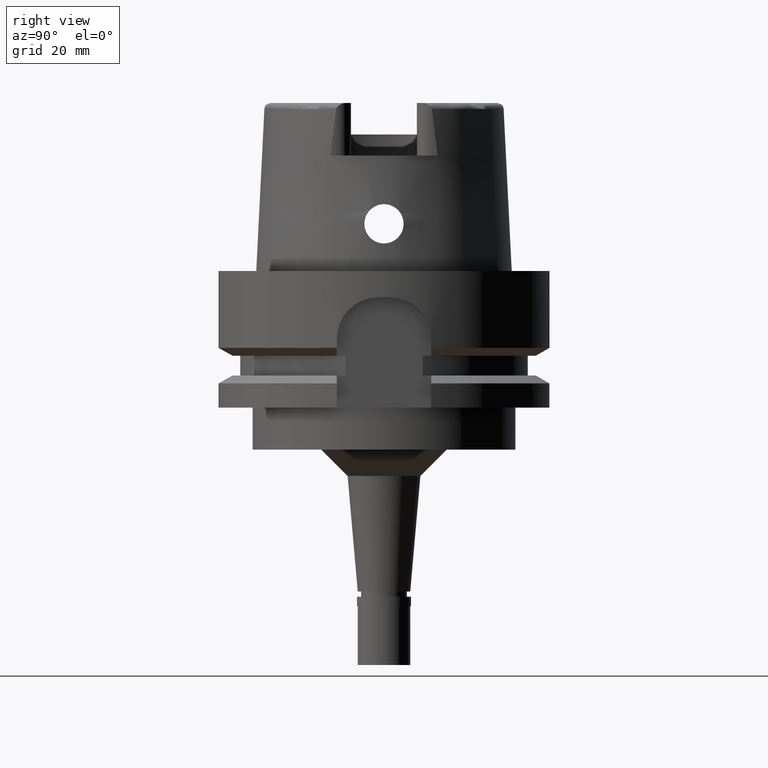
[diagram: clean part render]
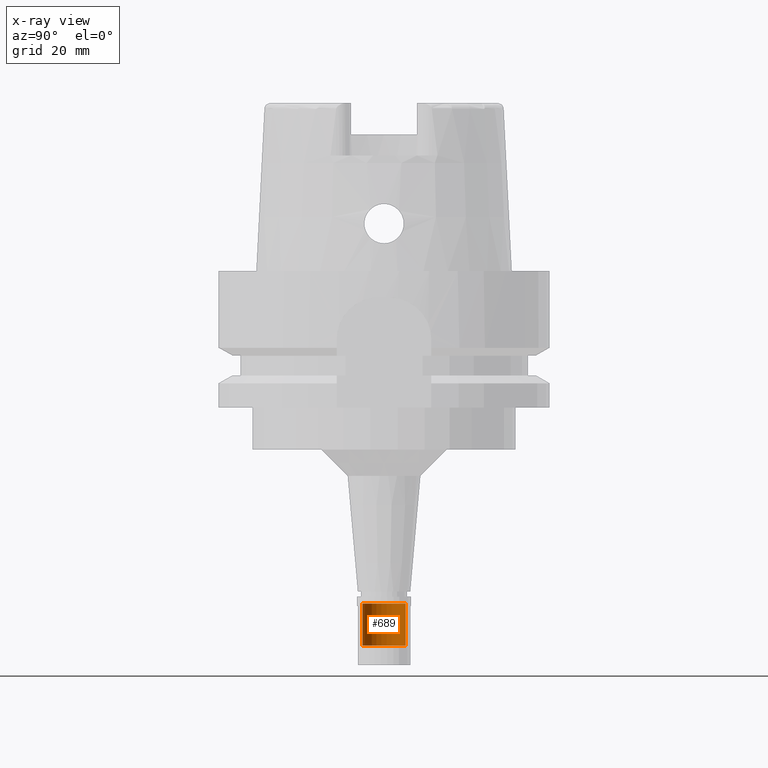
[diagram: x-ray — body ghosted, one internal face saturated and labeled with its STEP entity id]
A machine part, right view, then the same camera in x-ray: the body is ghosted and one INTERNAL B-rep face — a face not visible from any outside direction — is saturated and labeled: STEP entity #689.
In plain terms, the highlighted cylindrical surface (edge-blend (fillet) strip) has radius 4.1 mm, axis along (0, 0, -1).
Its self-contained STEP definition (entity closure, byte-faithful):
#189 = CARTESIAN_POINT ( 'NONE',  ( 0.0000000000000000000, -4.100000000000000533, -63.29999999999999716 ) ) ;
#251 = DIRECTION ( 'NONE',  ( 0.0000000000000000000, 0.0000000000000000000, -1.000000000000000000 ) ) ;
#490 = CYLINDRICAL_SURFACE ( 'NONE', #3398, 4.100000000000000533 ) ;
#612 = CARTESIAN_POINT ( 'NONE',  ( 0.0000000000000000000, 4.100000000000000533, -63.29999999999999716 ) ) ;
#689 = ADVANCED_FACE ( 'NONE', ( #4698 ), #490, .T. ) ;
#735 = DIRECTION ( 'NONE',  ( 0.0000000000000000000, 0.0000000000000000000, 1.000000000000000000 ) ) ;
#801 = CARTESIAN_POINT ( 'NONE',  ( 0.0000000000000000000, 1.679786782049999636E-14, 37.16499999999999915 ) ) ;
#917 = CIRCLE ( 'NONE', #1652, 4.100000000000000533 ) ;
#1095 = LINE ( 'NONE', #189, #4371 ) ;
#1132 = CARTESIAN_POINT ( 'NONE',  ( 0.0000000000000000000, 4.100000000000000533, -71.29999999999999716 ) ) ;
#1208 = CARTESIAN_POINT ( 'NONE',  ( 0.0000000000000000000, -4.100000000000000533, -63.29999999999999716 ) ) ;
#1599 = DIRECTION ( 'NONE',  ( 0.0000000000000000000, 1.000000000000000000, 0.0000000000000000000 ) ) ;
#1652 = AXIS2_PLACEMENT_3D ( 'NONE', #4604, #735, #1599 ) ;
#1873 = DIRECTION ( 'NONE',  ( 0.0000000000000000000, 0.0000000000000000000, -1.000000000000000000 ) ) ;
#2024 = VERTEX_POINT ( 'NONE', #612 ) ;
#2106 = CARTESIAN_POINT ( 'NONE',  ( 0.0000000000000000000, 4.100000000000000533, -63.29999999999999716 ) ) ;
#2116 = EDGE_CURVE ( 'NONE', #2496, #4630, #917, .T. ) ;
#2268 = EDGE_LOOP ( 'NONE', ( #2361, #4758, #2663, #3674 ) ) ;
#2361 = ORIENTED_EDGE ( 'NONE', *, *, #2116, .T. ) ;
#2364 = DIRECTION ( 'NONE',  ( 0.0000000000000000000, -1.000000000000000000, 0.0000000000000000000 ) ) ;
#2389 = CIRCLE ( 'NONE', #3760, 4.100000000000000533 ) ;
#2394 = EDGE_CURVE ( 'NONE', #2905, #4630, #1095, .T. ) ;
#2396 = CARTESIAN_POINT ( 'NONE',  ( 0.0000000000000000000, 1.679786782049999636E-14, -63.29999999999999716 ) ) ;
#2496 = VERTEX_POINT ( 'NONE', #1132 ) ;
#2533 = DIRECTION ( 'NONE',  ( 0.0000000000000000000, -1.000000000000000000, 0.0000000000000000000 ) ) ;
#2663 = ORIENTED_EDGE ( 'NONE', *, *, #5564, .T. ) ;
#2905 = VERTEX_POINT ( 'NONE', #1208 ) ;
#3070 = CARTESIAN_POINT ( 'NONE',  ( 0.0000000000000000000, -4.100000000000000533, -71.29999999999999716 ) ) ;
#3398 = AXIS2_PLACEMENT_3D ( 'NONE', #801, #3877, #2533 ) ;
#3607 = EDGE_CURVE ( 'NONE', #2024, #2496, #5152, .T. ) ;
#3674 = ORIENTED_EDGE ( 'NONE', *, *, #3607, .T. ) ;
#3760 = AXIS2_PLACEMENT_3D ( 'NONE', #2396, #1873, #2364 ) ;
#3877 = DIRECTION ( 'NONE',  ( 0.0000000000000000000, 0.0000000000000000000, -1.000000000000000000 ) ) ;
#4211 = DIRECTION ( 'NONE',  ( 0.0000000000000000000, 0.0000000000000000000, -1.000000000000000000 ) ) ;
#4371 = VECTOR ( 'NONE', #251, 1000.000000000000000 ) ;
#4604 = CARTESIAN_POINT ( 'NONE',  ( 0.0000000000000000000, 1.679786782049999636E-14, -71.29999999999999716 ) ) ;
#4630 = VERTEX_POINT ( 'NONE', #3070 ) ;
#4698 = FACE_OUTER_BOUND ( 'NONE', #2268, .T. ) ;
#4758 = ORIENTED_EDGE ( 'NONE', *, *, #2394, .F. ) ;
#5152 = LINE ( 'NONE', #2106, #5202 ) ;
#5202 = VECTOR ( 'NONE', #4211, 1000.000000000000000 ) ;
#5564 = EDGE_CURVE ( 'NONE', #2905, #2024, #2389, .T. ) ;